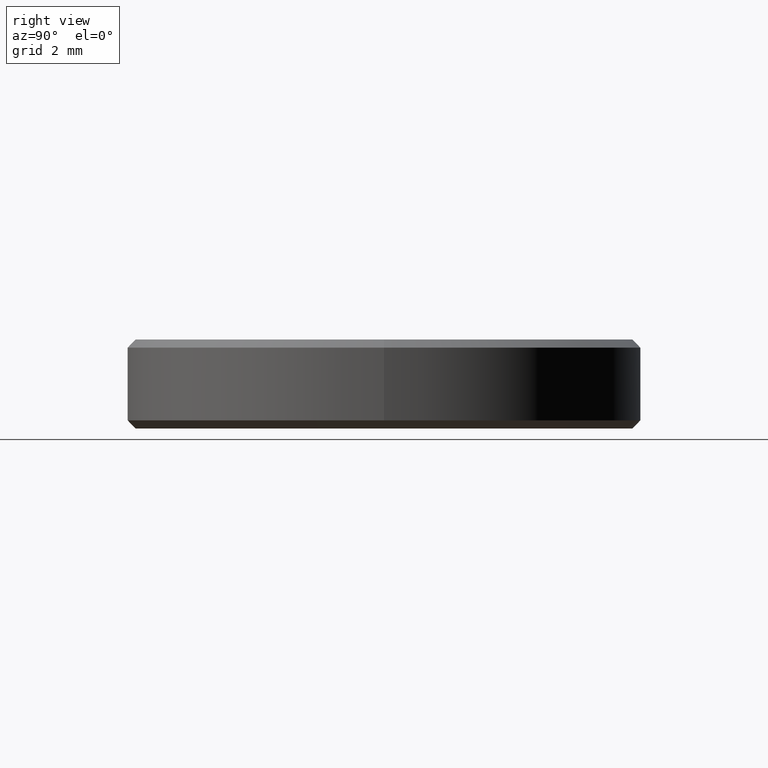
[diagram: clean part render]
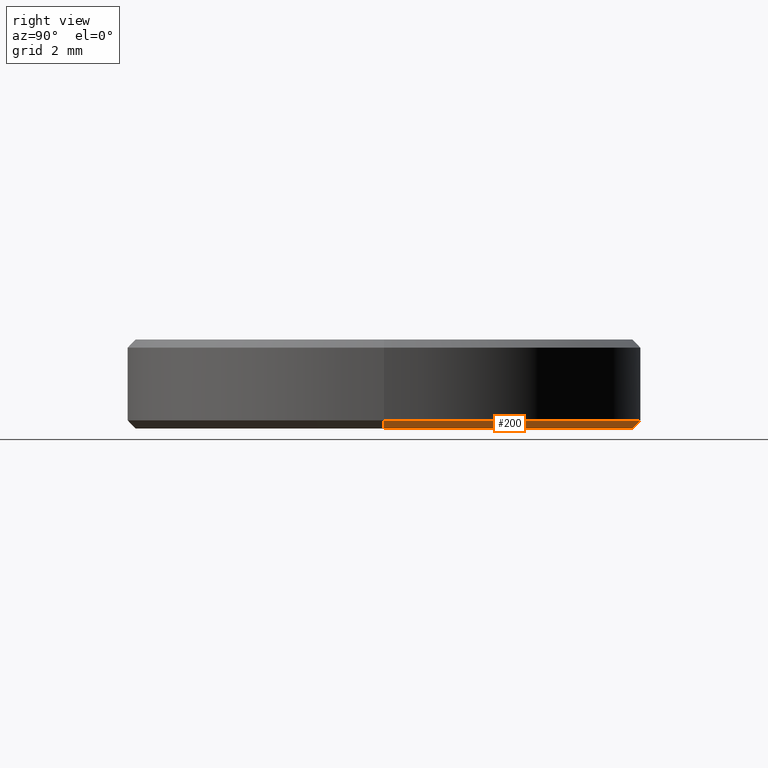
[diagram: same view with one face highlighted and labeled with its STEP entity id]
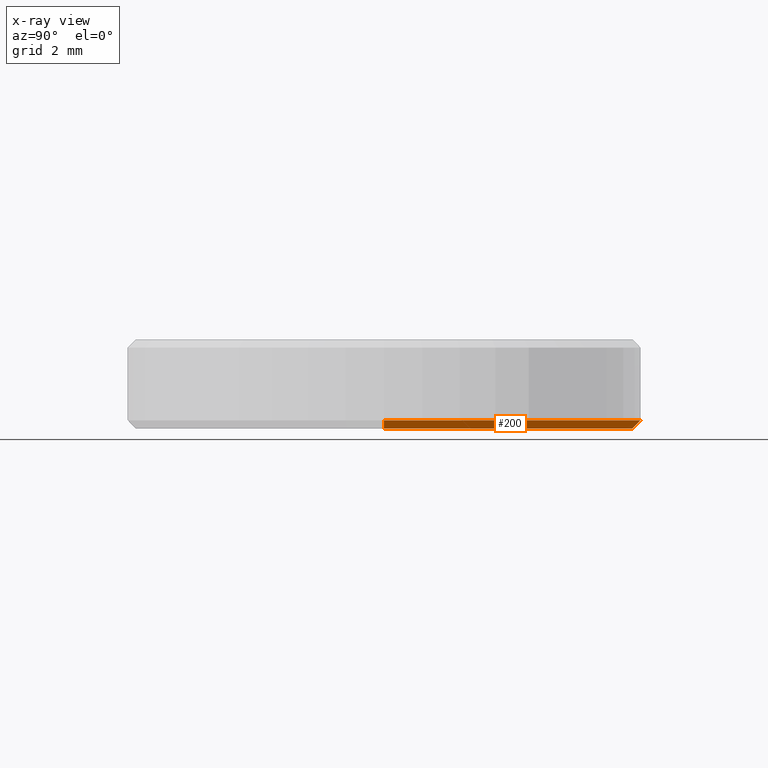
[diagram: x-ray of the same camera — body ghosted, the highlighted face saturated]
A machine part, right view. The second image highlights one B-rep face of the part: STEP entity #200.
The next image is the same camera in x-ray: the body ghosted, the highlighted face saturated — about 0% of this face is hidden behind the body in this view.
In plain terms, the highlighted conical surface has half-angle 45 deg.
Its self-contained STEP definition (entity closure, byte-faithful):
#34 = VERTEX_POINT ( 'NONE', #268 ) ;
#48 = CARTESIAN_POINT ( 'NONE',  ( 6.349999999999999645, 7.776507174585692163E-16, 0.1999999999999987899 ) ) ;
#51 = CARTESIAN_POINT ( 'NONE',  ( -6.349999999999999645, 7.776507174585692163E-16, 0.1999999999999987899 ) ) ;
#60 = CARTESIAN_POINT ( 'NONE',  ( 0.000000000000000000, 0.000000000000000000, 0.1999999999999987899 ) ) ;
#61 = ORIENTED_EDGE ( 'NONE', *, *, #457, .T. ) ;
#66 = CARTESIAN_POINT ( 'NONE',  ( 6.349999999999999645, 0.000000000000000000, 0.1999999999999987899 ) ) ;
#67 = CONICAL_SURFACE ( 'NONE', #469, 6.349999999999999645, 0.7853981633974504994 ) ;
#70 = DIRECTION ( 'NONE',  ( -0.000000000000000000, -0.000000000000000000, 1.000000000000000000 ) ) ;
#114 = ORIENTED_EDGE ( 'NONE', *, *, #488, .F. ) ;
#183 = EDGE_LOOP ( 'NONE', ( #340, #61, #114, #415 ) ) ;
#200 = ADVANCED_FACE ( 'NONE', ( #398 ), #67, .T. ) ;
#204 = DIRECTION ( 'NONE',  ( 1.000000000000000000, 0.000000000000000000, 0.000000000000000000 ) ) ;
#208 = LINE ( 'NONE', #51, #330 ) ;
#210 = VECTOR ( 'NONE', #599, 1000.000000000000114 ) ;
#268 = CARTESIAN_POINT ( 'NONE',  ( 6.150000000000000355, 0.000000000000000000, 0.000000000000000000 ) ) ;
#291 = CIRCLE ( 'NONE', #505, 6.349999999999999645 ) ;
#293 = DIRECTION ( 'NONE',  ( 1.000000000000000000, 0.000000000000000000, 0.000000000000000000 ) ) ;
#317 = DIRECTION ( 'NONE',  ( -0.000000000000000000, -0.000000000000000000, -1.000000000000000000 ) ) ;
#320 = DIRECTION ( 'NONE',  ( 1.000000000000000000, 0.000000000000000000, 0.000000000000000000 ) ) ;
#330 = VECTOR ( 'NONE', #371, 1000.000000000000114 ) ;
#337 = CARTESIAN_POINT ( 'NONE',  ( -6.349999999999999645, 0.000000000000000000, 0.1999999999999987899 ) ) ;
#340 = ORIENTED_EDGE ( 'NONE', *, *, #480, .F. ) ;
#356 = CIRCLE ( 'NONE', #504, 6.150000000000000355 ) ;
#371 = DIRECTION ( 'NONE',  ( -0.7071067811865490160, 8.659560562354953812E-17, 0.7071067811865460184 ) ) ;
#392 = LINE ( 'NONE', #66, #210 ) ;
#398 = FACE_OUTER_BOUND ( 'NONE', #183, .T. ) ;
#415 = ORIENTED_EDGE ( 'NONE', *, *, #630, .F. ) ;
#430 = CARTESIAN_POINT ( 'NONE',  ( 0.000000000000000000, 0.000000000000000000, 0.000000000000000000 ) ) ;
#457 = EDGE_CURVE ( 'NONE', #654, #522, #208, .T. ) ;
#469 = AXIS2_PLACEMENT_3D ( 'NONE', #60, #70, #293 ) ;
#480 = EDGE_CURVE ( 'NONE', #654, #34, #356, .T. ) ;
#488 = EDGE_CURVE ( 'NONE', #502, #522, #291, .T. ) ;
#502 = VERTEX_POINT ( 'NONE', #48 ) ;
#504 = AXIS2_PLACEMENT_3D ( 'NONE', #430, #317, #204 ) ;
#505 = AXIS2_PLACEMENT_3D ( 'NONE', #687, #628, #320 ) ;
#509 = CARTESIAN_POINT ( 'NONE',  ( -6.150000000000000355, 7.654042494670957606E-16, 0.000000000000000000 ) ) ;
#522 = VERTEX_POINT ( 'NONE', #337 ) ;
#599 = DIRECTION ( 'NONE',  ( 0.7071067811865490160, 0.000000000000000000, 0.7071067811865460184 ) ) ;
#628 = DIRECTION ( 'NONE',  ( -0.000000000000000000, -0.000000000000000000, 1.000000000000000000 ) ) ;
#630 = EDGE_CURVE ( 'NONE', #34, #502, #392, .T. ) ;
#654 = VERTEX_POINT ( 'NONE', #509 ) ;
#687 = CARTESIAN_POINT ( 'NONE',  ( 0.000000000000000000, 0.000000000000000000, 0.1999999999999987899 ) ) ;